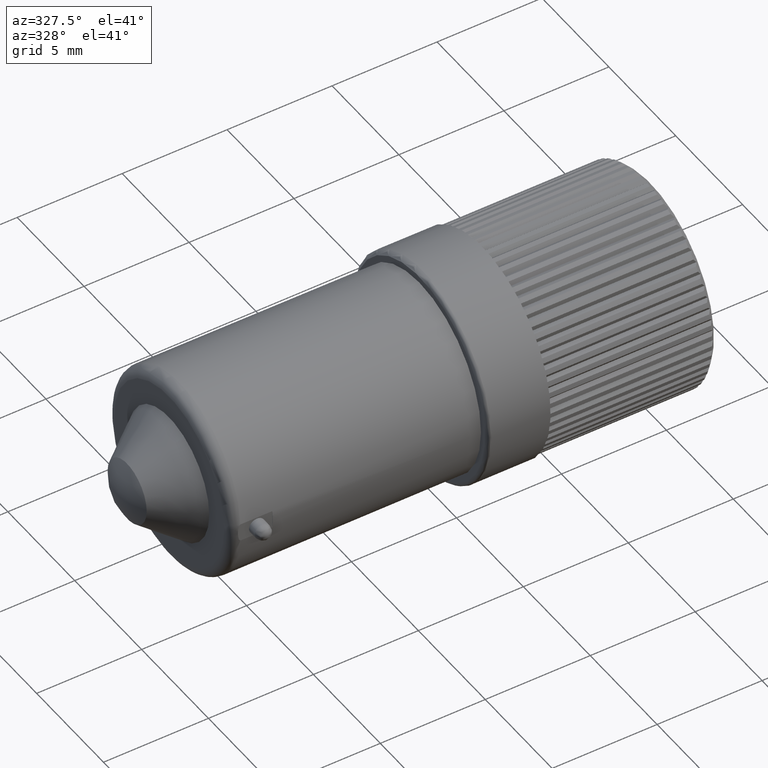
[diagram: clean part render]
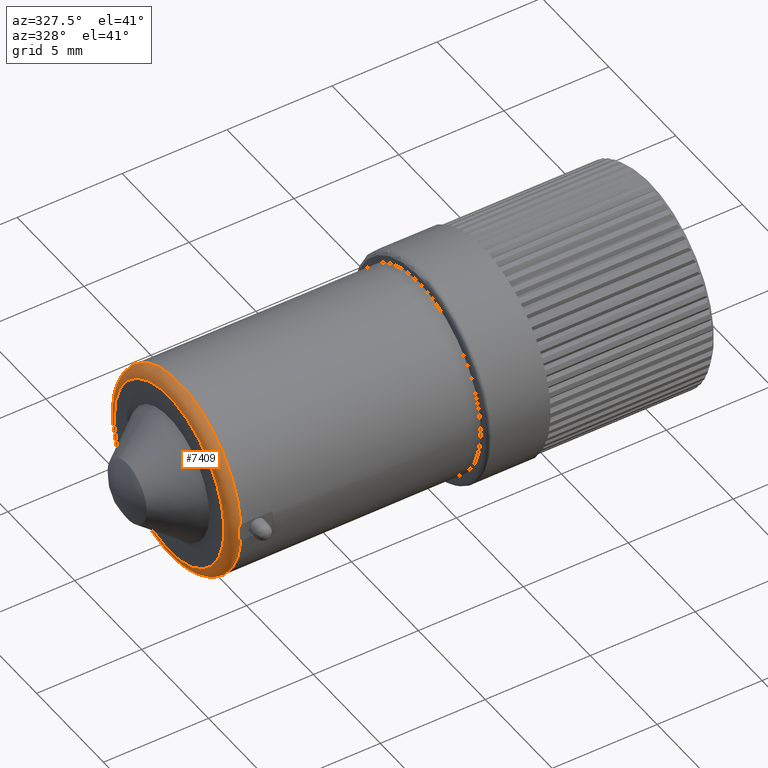
[diagram: same view with one face highlighted and labeled with its STEP entity id]
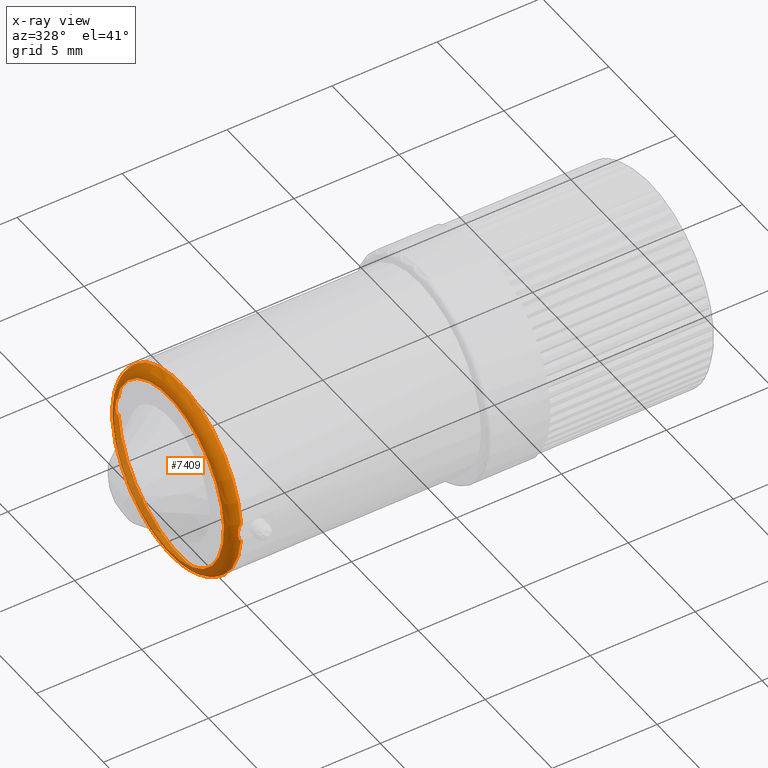
[diagram: x-ray of the same camera — body ghosted, the highlighted face saturated]
A machine part, auxiliary view. The second image highlights one B-rep face of the part: STEP entity #7409.
The next image is the same camera in x-ray: the body ghosted, the highlighted face saturated — about 12% of this face is hidden behind the body in this view.
In plain terms, the highlighted toroidal blend (fillet) surface has major radius 4.1 mm and minor (blend) radius 0.5 mm.
Its self-contained STEP definition (entity closure, byte-faithful):
#7228=CARTESIAN_POINT('',(-11.205609115138566,7.692961736609104,-0.428485705712572));
#7229=VERTEX_POINT('',#7228);
#7236=CARTESIAN_POINT('',(-11.205609115138566,7.692961736609104,0.428485705712572));
#7237=VERTEX_POINT('',#7236);
#7238=CARTESIAN_POINT('',(-11.205609115138566,7.692961736609104,0.428485705712572));
#7239=CARTESIAN_POINT('',(-11.213493394584956,7.692961736609104,0.428485705712571));
#7240=CARTESIAN_POINT('',(-11.222599724750932,7.692961736609104,0.425919028337437));
#7241=CARTESIAN_POINT('',(-11.240301847795912,7.692961736609104,0.416661973075294));
#7242=CARTESIAN_POINT('',(-11.250828480085826,7.692961736609104,0.406674612086108));
#7243=CARTESIAN_POINT('',(-11.273318155992225,7.692961736609104,0.379013964780365));
#7244=CARTESIAN_POINT('',(-11.285928217333369,7.692961736609104,0.353713346548027));
#7245=CARTESIAN_POINT('',(-11.334050955553057,7.692961736609104,0.233178343825161));
#7246=CARTESIAN_POINT('',(-11.345609115138565,7.692961736609104,0.106228825513141));
#7247=CARTESIAN_POINT('',(-11.345609115138565,7.692961736609104,0.0));
#7248=CARTESIAN_POINT('',(-11.345609115138565,7.692961736609104,-0.106228825513141));
#7249=CARTESIAN_POINT('',(-11.334050955553057,7.692961736609104,-0.233178343825161));
#7250=CARTESIAN_POINT('',(-11.285928217333369,7.692961736609104,-0.353713346548027));
#7251=CARTESIAN_POINT('',(-11.273318155992225,7.692961736609104,-0.379013964780365));
#7252=CARTESIAN_POINT('',(-11.250828480085826,7.692961736609104,-0.406674612086108));
#7253=CARTESIAN_POINT('',(-11.240301847795912,7.692961736609104,-0.416661973075294));
#7254=CARTESIAN_POINT('',(-11.222599724750932,7.692961736609104,-0.425919028337437));
#7255=CARTESIAN_POINT('',(-11.213493394584956,7.692961736609104,-0.428485705712571));
#7256=CARTESIAN_POINT('',(-11.205609115138566,7.692961736609104,-0.428485705712572));
#7257=B_SPLINE_CURVE_WITH_KNOTS('',3,(#7238,#7239,#7240,#7241,#7242,#7243,#7244,#7245,#7246,#7247,#7248,#7249,#7250,#7251,#7252,#7253,#7254,#7255,#7256),.UNSPECIFIED.,.F.,.U.,(4,2,2,2,3,2,2,2,4),(-0.044928823907013,-0.042563540073096,-0.038935891326186,-0.031868647653942,0.0,0.031868647653942,0.038935891326186,0.042563540073096,0.044928823907013),.UNSPECIFIED.);
#7258=EDGE_CURVE('',#7237,#7229,#7257,.T.);
#7303=CARTESIAN_POINT('',(-11.205609115138566,-1.467038263390893,0.428485705712572));
#7304=VERTEX_POINT('',#7303);
#7311=CARTESIAN_POINT('',(-11.205609115138566,-1.467038263390893,-0.428485705712572));
#7312=VERTEX_POINT('',#7311);
#7313=CARTESIAN_POINT('',(-11.205609115138566,-1.467038263390893,-0.428485705712572));
#7314=CARTESIAN_POINT('',(-11.213493394584956,-1.467038263390893,-0.428485705712571));
#7315=CARTESIAN_POINT('',(-11.222599724750932,-1.467038263390893,-0.425919028337437));
#7316=CARTESIAN_POINT('',(-11.240301847795912,-1.467038263390893,-0.416661973075294));
#7317=CARTESIAN_POINT('',(-11.250828480085826,-1.467038263390893,-0.406674612086108));
#7318=CARTESIAN_POINT('',(-11.273318155992225,-1.467038263390893,-0.379013964780365));
#7319=CARTESIAN_POINT('',(-11.285928217333369,-1.467038263390893,-0.353713346548027));
#7320=CARTESIAN_POINT('',(-11.334050955553057,-1.467038263390893,-0.233178343825161));
#7321=CARTESIAN_POINT('',(-11.345609115138565,-1.467038263390893,-0.106228825513141));
#7322=CARTESIAN_POINT('',(-11.345609115138565,-1.467038263390893,0.0));
#7323=CARTESIAN_POINT('',(-11.345609115138565,-1.467038263390893,0.106228825513141));
#7324=CARTESIAN_POINT('',(-11.334050955553057,-1.467038263390893,0.233178343825161));
#7325=CARTESIAN_POINT('',(-11.285928217333369,-1.467038263390893,0.353713346548027));
#7326=CARTESIAN_POINT('',(-11.273318155992225,-1.467038263390893,0.379013964780365));
#7327=CARTESIAN_POINT('',(-11.250828480085826,-1.467038263390893,0.406674612086108));
#7328=CARTESIAN_POINT('',(-11.240301847795912,-1.467038263390893,0.416661973075294));
#7329=CARTESIAN_POINT('',(-11.222599724750932,-1.467038263390893,0.425919028337437));
#7330=CARTESIAN_POINT('',(-11.213493394584956,-1.467038263390893,0.428485705712571));
#7331=CARTESIAN_POINT('',(-11.205609115138566,-1.467038263390893,0.428485705712572));
#7332=B_SPLINE_CURVE_WITH_KNOTS('',3,(#7313,#7314,#7315,#7316,#7317,#7318,#7319,#7320,#7321,#7322,#7323,#7324,#7325,#7326,#7327,#7328,#7329,#7330,#7331),.UNSPECIFIED.,.F.,.U.,(4,2,2,2,3,2,2,2,4),(-0.044928823907013,-0.042563540073096,-0.038935891326186,-0.031868647653942,0.0,0.031868647653942,0.038935891326186,0.042563540073096,0.044928823907013),.UNSPECIFIED.);
#7333=EDGE_CURVE('',#7312,#7304,#7332,.T.);
#7356=CARTESIAN_POINT('',(-11.205609115138564,3.112961736609106,0.0));
#7357=DIRECTION('',(-1.0,0.0,0.0));
#7358=DIRECTION('',(0.0,-1.0,0.0));
#7359=AXIS2_PLACEMENT_3D('',#7356,#7357,#7358);
#7360=CIRCLE('',#7359,4.599999999999999);
#7361=EDGE_CURVE('',#7304,#7237,#7360,.T.);
#7366=CARTESIAN_POINT('',(-11.205609115138564,3.112961736609106,0.0));
#7367=DIRECTION('',(-1.0,0.0,0.0));
#7368=DIRECTION('',(0.0,-1.0,0.0));
#7369=AXIS2_PLACEMENT_3D('',#7366,#7367,#7368);
#7370=CIRCLE('',#7369,4.599999999999999);
#7371=EDGE_CURVE('',#7229,#7312,#7370,.T.);
#7387=CARTESIAN_POINT('',(-11.205609115138564,3.112961736609106,0.0));
#7388=DIRECTION('',(1.0,0.0,0.0));
#7389=DIRECTION('',(0.0,0.0,-1.0));
#7390=AXIS2_PLACEMENT_3D('',#7387,#7388,#7389);
#7391=TOROIDAL_SURFACE('',#7390,4.099999999999999,0.500000000000000);
#7392=ORIENTED_EDGE('',*,*,#7258,.T.);
#7393=ORIENTED_EDGE('',*,*,#7371,.T.);
#7394=ORIENTED_EDGE('',*,*,#7333,.T.);
#7395=ORIENTED_EDGE('',*,*,#7361,.T.);
#7396=EDGE_LOOP('',(#7392,#7393,#7394,#7395));
#7397=FACE_OUTER_BOUND('',#7396,.T.);
#7398=CARTESIAN_POINT('',(-11.705609115138564,7.212961736609104,0.0));
#7399=VERTEX_POINT('',#7398);
#7400=CARTESIAN_POINT('',(-11.705609115138564,3.112961736609106,0.0));
#7401=DIRECTION('',(1.0,0.0,0.0));
#7402=DIRECTION('',(0.0,-1.0,0.0));
#7403=AXIS2_PLACEMENT_3D('',#7400,#7401,#7402);
#7404=CIRCLE('',#7403,4.099999999999999);
#7405=EDGE_CURVE('',#7399,#7399,#7404,.T.);
#7406=ORIENTED_EDGE('',*,*,#7405,.T.);
#7407=EDGE_LOOP('',(#7406));
#7408=FACE_BOUND('',#7407,.T.);
#7409=ADVANCED_FACE('',(#7397,#7408),#7391,.T.);